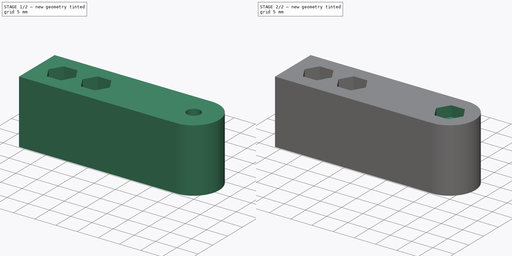
[diagram: build sequence overview — one tinted view per stage of 2, left to right]
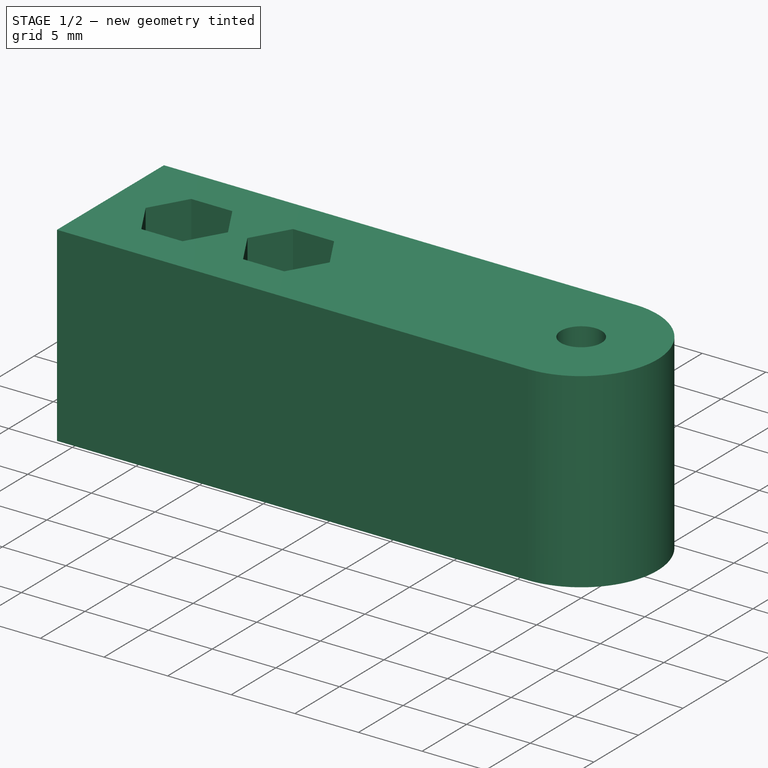
[diagram: stage 1 of 2 — iso view after this stage's code; geometry added in this stage tinted green]
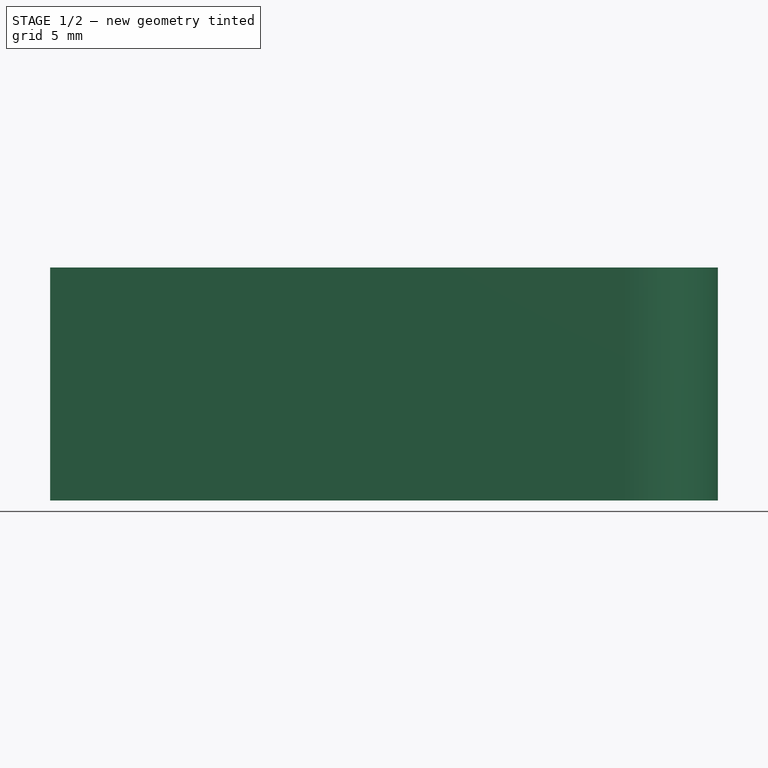
[diagram: stage 1 of 2 — front view after this stage's code; geometry added in this stage tinted green]
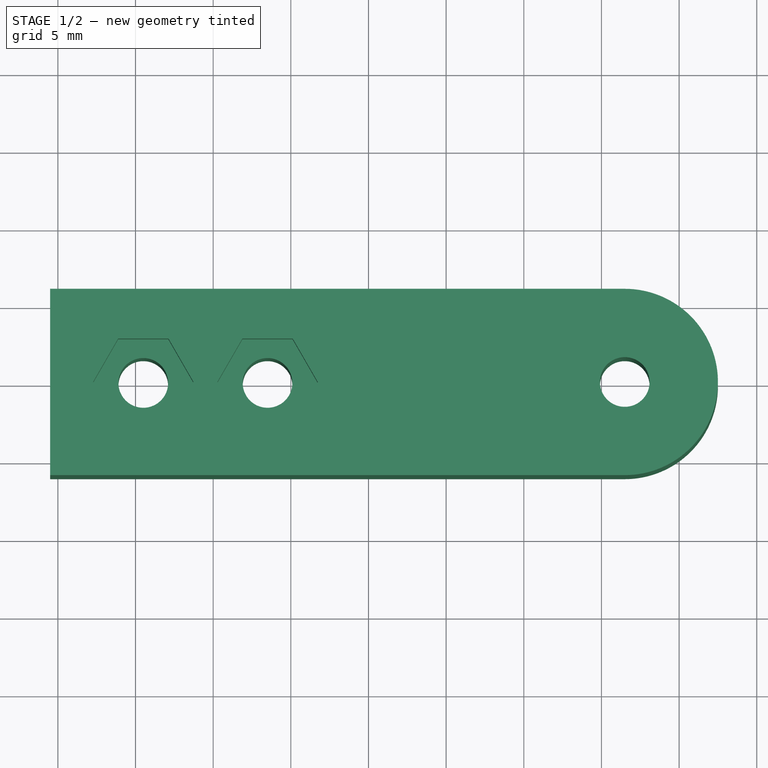
[diagram: stage 1 of 2 — top view after this stage's code; geometry added in this stage tinted green]
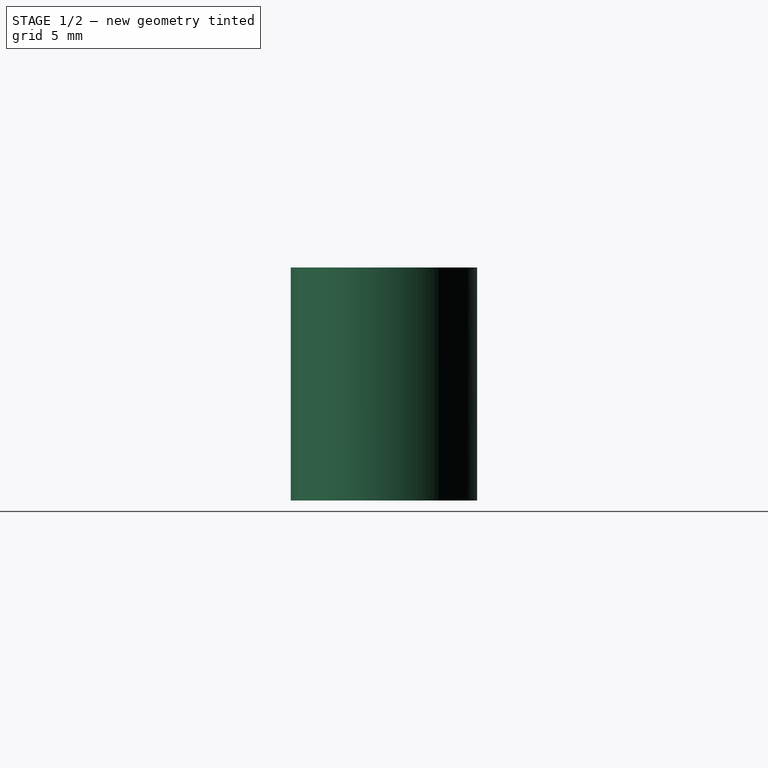
[diagram: stage 1 of 2 — right view after this stage's code; geometry added in this stage tinted green]
FCSTD DOCUMENT  (FreeCAD 0.20R29603 (Git))
Label: aaa
License: All rights reserved
LicenseURL: http://en.wikipedia.org/wiki/All_rights_reserved
objects: Sketcher::SketchObject×4, PartDesign::Pocket×3, PartDesign::Pad×1, PartDesign::Body×1
note: 13 computed .brp shape members not serialized (recipe doc carries the construction recipe); baked Part::Feature solids carry a one-line shape summary decoded from their .brp

FEATURE [Sketcher::SketchObject] Sketch
  FullyConstrained = true
  MapMode = 5
  Support = -> [XY_Plane]
  sketch-geometry (11):
    g0: LineSegment StartX=-15.5 StartY=6 StartZ=0 EndX=15.5 EndY=6 EndZ=0
    g1: LineSegment StartX=15.5 StartY=6 StartZ=0 EndX=15.5 EndY=-6 EndZ=0
    g2: LineSegment StartX=15.5 StartY=-6 StartZ=0 EndX=-15.5 EndY=-6 EndZ=0
    g3: LineSegment StartX=-15.5 StartY=-6 StartZ=0 EndX=-15.5 EndY=6 EndZ=0
    g4: Circle CenterX=-9.5 CenterY=0 CenterZ=0 NormalX=0 NormalY=0 NormalZ=1 AngleXU=0 Radius=1.6
    g5: Circle CenterX=-1.5 CenterY=0 CenterZ=0 NormalX=0 NormalY=0 NormalZ=1 AngleXU=0 Radius=1.6
    g6: Circle CenterX=21.5 CenterY=0 CenterZ=0 NormalX=0 NormalY=0 NormalZ=1 AngleXU=0 Radius=6
    g7: Circle CenterX=21.5 CenterY=0 CenterZ=0 NormalX=0 NormalY=0 NormalZ=1 AngleXU=0 Radius=1.6
    g8: LineSegment StartX=15.5 StartY=6 StartZ=0 EndX=21.5 EndY=6 EndZ=0
    g9: LineSegment StartX=15.5 StartY=-6 StartZ=0 EndX=21.5 EndY=-6 EndZ=0
    g10: ArcOfCircle CenterX=21.5 CenterY=0 CenterZ=0 NormalX=0 NormalY=0 NormalZ=1 AngleXU=0 Radius=6 StartAngle=4.71239 EndAngle=7.85398
  constraints (29):
    c: Coincident(g0,g1)
    c: Coincident(g1,g2)
    c: Coincident(g2,g3)
    c: Coincident(g3,g0)
    c: Horizontal(g2)
    c: Vertical(g1)
    c: DistanceY(g3,g3) = 12
    c: Symmetric(g0,g0,g-2)
    c: Symmetric(g0,g2,g-1)
    c: PointOnObject(g4,g-1)
    c: PointOnObject(g5,g-1)
    c: DistanceX(g4,g5) = 8
    c: PointOnObject(g6,g-1)
    c: Tangent(g6,g0)
    c: Tangent(g6,g1)
    c: Coincident(g7,g6)
    c: Coincident(g8,g0)
    c: Coincident(g9,g2)
    c: Coincident(g10,g7)
    c: Coincident(g9,g10)
    c: Coincident(g10,g8)
    c: Equal(g10,g6)
    c: Vertical(g9,g7)
    c: Vertical(g7,g8)
    c: DistanceX(g5,g2) = 17
    c: DistanceX(g2,g4) = 6
    c: Equal(g7,g5)
    c: Equal(g5,g4)
    c: Diameter(g7) = 3.2
FEATURE [PartDesign::Pad] Pad
  Direction = (0,0,1)
  Length = 15
  Length2 = 10
  Profile = -> Sketch
  ReferenceAxis = -> Sketch [N_Axis]
  Type = 0
FEATURE [Sketcher::SketchObject] Sketch001
  ExternalGeometry = -> [Pad]
  FullyConstrained = true
  MapMode = 5
  Placement = pos=(0,0,15) rot=(0,0,1;0rad)
  Support = -> [Pad]
  sketch-geometry (14):
    g0: LineSegment StartX=-7.88342 StartY=2.8 StartZ=0 EndX=-11.1166 EndY=2.8 EndZ=0
    g1: LineSegment StartX=-11.1166 StartY=2.8 StartZ=0 EndX=-12.7332 EndY=1.3447e-12 EndZ=0
    g2: LineSegment StartX=-12.7332 StartY=1.3447e-12 StartZ=0 EndX=-11.1166 EndY=-2.8 EndZ=0
    g3: LineSegment StartX=-11.1166 StartY=-2.8 StartZ=0 EndX=-7.88342 EndY=-2.8 EndZ=0
    g4: LineSegment StartX=-7.88342 StartY=-2.8 StartZ=0 EndX=-6.26684 EndY=1.3451e-12 EndZ=0
    g5: LineSegment StartX=-6.26684 StartY=1.3451e-12 StartZ=0 EndX=-7.88342 EndY=2.8 EndZ=0
    g6: Circle CenterX=-9.5 CenterY=0 CenterZ=0 NormalX=0 NormalY=0 NormalZ=1 AngleXU=0 Radius=3.23316
    g7: LineSegment StartX=0.116581 StartY=2.8 StartZ=0 EndX=-3.11658 EndY=2.8 EndZ=0
    g8: LineSegment StartX=-3.11658 StartY=2.8 StartZ=0 EndX=-4.73316 EndY=0 EndZ=0
    g9: LineSegment StartX=-4.73316 StartY=1e-16 StartZ=0 EndX=-3.11658 EndY=-2.8 EndZ=0
    g10: LineSegment StartX=-3.11658 StartY=-2.8 StartZ=0 EndX=0.116581 EndY=-2.8 EndZ=0
    g11: LineSegment StartX=0.116581 StartY=-2.8 StartZ=0 EndX=1.73316 EndY=-4e-16 EndZ=0
    g12: LineSegment StartX=1.73316 StartY=-4e-16 StartZ=0 EndX=0.116581 EndY=2.8 EndZ=0
    g13: Circle CenterX=-1.5 CenterY=0 CenterZ=0 NormalX=0 NormalY=0 NormalZ=1 AngleXU=0 Radius=3.23316
  constraints (32):
    c: Coincident(g0,g1)
    c: Coincident(g1,g2)
    c: Coincident(g2,g3)
    c: Coincident(g3,g4)
    c: Coincident(g4,g5)
    c: Coincident(g5,g0)
    c: Equal(g0, g1-g5) x5
    c: PointOnObject(g0,g6)
    c: PointOnObject(g1,g6)
    c: PointOnObject(g2,g6)
    c: PointOnObject(g3,g6)
    c: PointOnObject(g4,g6)
    c: PointOnObject(g5,g6)
    c: Coincident(g7,g8)
    c: Coincident(g8,g9)
    c: Coincident(g9,g10)
    c: Coincident(g10,g11)
    c: Coincident(g11,g12)
    c: Coincident(g12,g7)
    c: Equal(g7, g8-g12) x5
    c: PointOnObject(g7,g13)
    c: PointOnObject(g8,g13)
    c: PointOnObject(g9,g13)
    c: PointOnObject(g10,g13)
    c: PointOnObject(g11,g13)
    c: PointOnObject(g12,g13)
    c: Coincident(g13,g-3)
    c: Coincident(g6,g-4)
    c: Horizontal(g0)
    c: Horizontal(g7)
    c: Equal(g13,g6)
    c: DistanceY(g2,g0) = 5.6
FEATURE [PartDesign::Pocket] Pocket
  BaseFeature = -> Pad
  Direction = (0,0,-1)
  Length = 3.5
  Length2 = 5
  Profile = -> Sketch001
  ReferenceAxis = -> Sketch001 [N_Axis]
  Type = 0
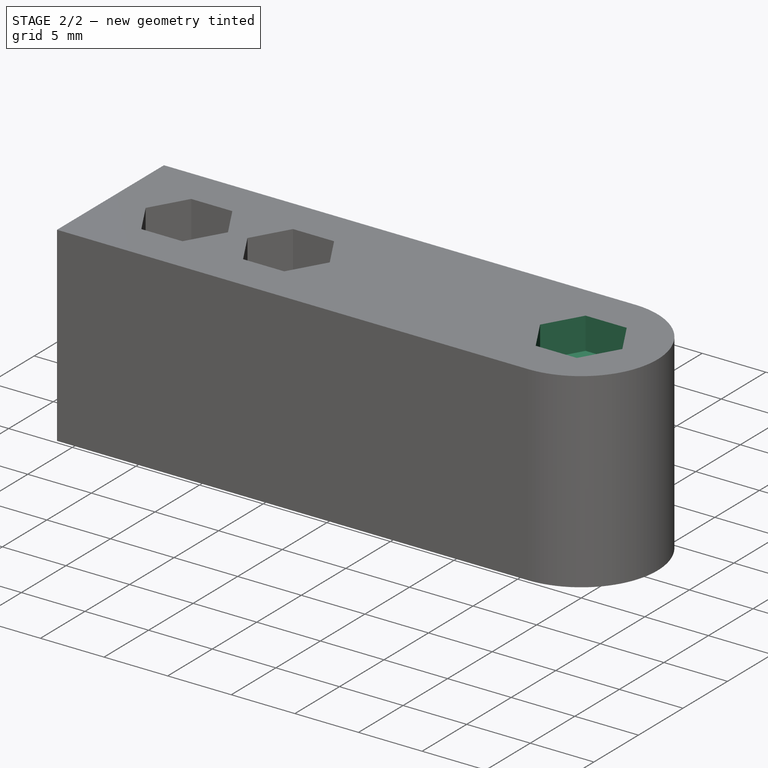
[diagram: stage 2 of 2 — iso view after this stage's code; geometry added in this stage tinted green]
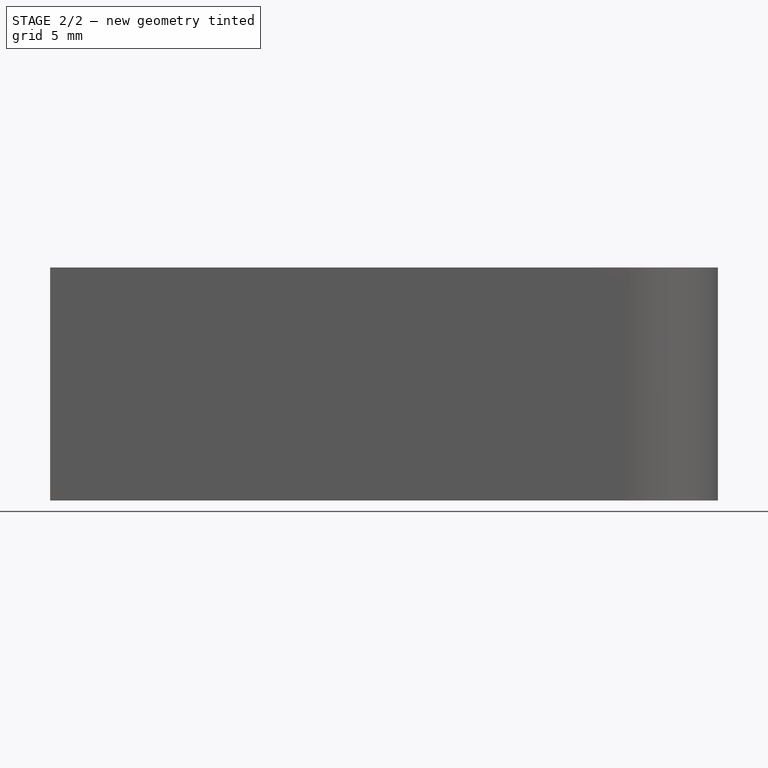
[diagram: stage 2 of 2 — front view after this stage's code; geometry added in this stage tinted green]
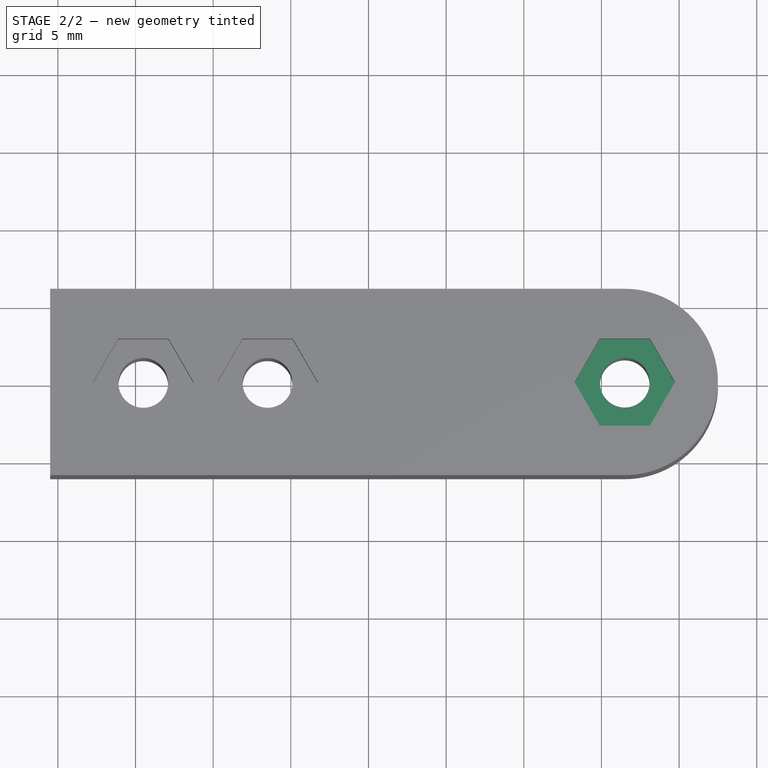
[diagram: stage 2 of 2 — top view after this stage's code; geometry added in this stage tinted green]
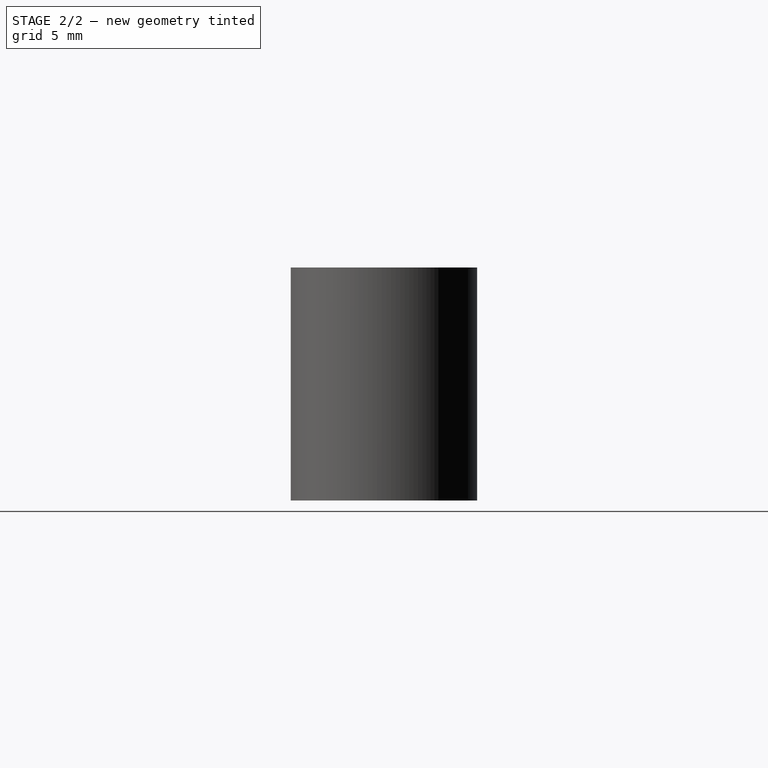
[diagram: stage 2 of 2 — right view after this stage's code; geometry added in this stage tinted green]
FEATURE [Sketcher::SketchObject] Sketch002
  ExternalGeometry = -> [Pocket]
  FullyConstrained = true
  MapMode = 5
  Placement = pos=(0,0,15) rot=(0,0,1;0rad)
  Support = -> [Pocket]
  sketch-geometry (7):
    g0: LineSegment StartX=23.1166 StartY=2.8 StartZ=0 EndX=19.8834 EndY=2.8 EndZ=0
    g1: LineSegment StartX=19.8834 StartY=2.8 StartZ=0 EndX=18.2668 EndY=4e-16 EndZ=0
    g2: LineSegment StartX=18.2668 StartY=4e-16 StartZ=0 EndX=19.8834 EndY=-2.8 EndZ=0
    g3: LineSegment StartX=19.8834 StartY=-2.8 StartZ=0 EndX=23.1166 EndY=-2.8 EndZ=0
    g4: LineSegment StartX=23.1166 StartY=-2.8 StartZ=0 EndX=24.7332 EndY=0 EndZ=0
    g5: LineSegment StartX=24.7332 StartY=1e-16 StartZ=0 EndX=23.1166 EndY=2.8 EndZ=0
    g6: Circle CenterX=21.5 CenterY=0 CenterZ=0 NormalX=0 NormalY=0 NormalZ=1 AngleXU=0 Radius=3.23316
  constraints (16):
    c: Coincident(g0,g1)
    c: Coincident(g1,g2)
    c: Coincident(g2,g3)
    c: Coincident(g3,g4)
    c: Coincident(g4,g5)
    c: Coincident(g5,g0)
    c: Equal(g0, g1-g5) x5
    c: PointOnObject(g0,g6)
    c: PointOnObject(g1,g6)
    c: PointOnObject(g2,g6)
    c: PointOnObject(g3,g6)
    c: PointOnObject(g4,g6)
    c: PointOnObject(g5,g6)
    c: Coincident(g6,g-3)
    c: Horizontal(g0)
    c: Equal(g0,g-4)
FEATURE [PartDesign::Pocket] Pocket001
  BaseFeature = -> Pocket
  Direction = (0,0,-1)
  Length = 2.5
  Length2 = 5
  Profile = -> Sketch002
  ReferenceAxis = -> Sketch002 [N_Axis]
  Type = 0
FEATURE [Sketcher::SketchObject] Sketch003
  ExternalGeometry = -> [Pocket001]
  FullyConstrained = true
  MapMode = 5
  Placement = pos=(0,0,0) rot=(1,0,0;3.14159rad)
  Support = -> [Pocket001]
  sketch-geometry (7):
    g0: LineSegment StartX=24.7332 StartY=1.129e-13 StartZ=0 EndX=23.1166 EndY=2.8 EndZ=0
    g1: LineSegment StartX=23.1166 StartY=2.8 StartZ=0 EndX=19.8834 EndY=2.8 EndZ=0
    g2: LineSegment StartX=19.8834 StartY=2.8 StartZ=0 EndX=18.2668 EndY=-7.15e-13 EndZ=0
    g3: LineSegment StartX=18.2668 StartY=-7.15e-13 StartZ=0 EndX=19.8834 EndY=-2.8 EndZ=0
    g4: LineSegment StartX=19.8834 StartY=-2.8 StartZ=0 EndX=23.1166 EndY=-2.8 EndZ=0
    g5: LineSegment StartX=23.1166 StartY=-2.8 StartZ=0 EndX=24.7332 EndY=1.128e-13 EndZ=0
    g6: Circle CenterX=21.5 CenterY=0 CenterZ=0 NormalX=0 NormalY=0 NormalZ=1 AngleXU=0 Radius=3.23316
  constraints (15):
    c: Coincident(g0,g1)
    c: Coincident(g1,g2)
    c: Coincident(g2,g3)
    c: Coincident(g3,g4)
    c: Coincident(g4,g5)
    c: Coincident(g5,g0)
    c: Equal(g0, g1-g5) x5
    c: PointOnObject(g0,g6)
    c: PointOnObject(g1,g6)
    c: PointOnObject(g2,g6)
    c: PointOnObject(g3,g6)
    c: PointOnObject(g4,g6)
    c: PointOnObject(g5,g6)
    c: Coincident(g6,g-3)
    c: Coincident(g-4,g0)
FEATURE [PartDesign::Pocket] Pocket002
  BaseFeature = -> Pocket001
  Direction = (0,0,1)
  Length = 2.5
  Length2 = 5
  Profile = -> Sketch003
  ReferenceAxis = -> Sketch003 [N_Axis]
  Type = 0
FEATURE [PartDesign::Body] Body
  Group = -> [Sketch,Pad,Sketch001,Pocket,Sketch002,Pocket001,Sketch003,Pocket002]
  Origin = -> Origin
  Tip = -> Pocket002
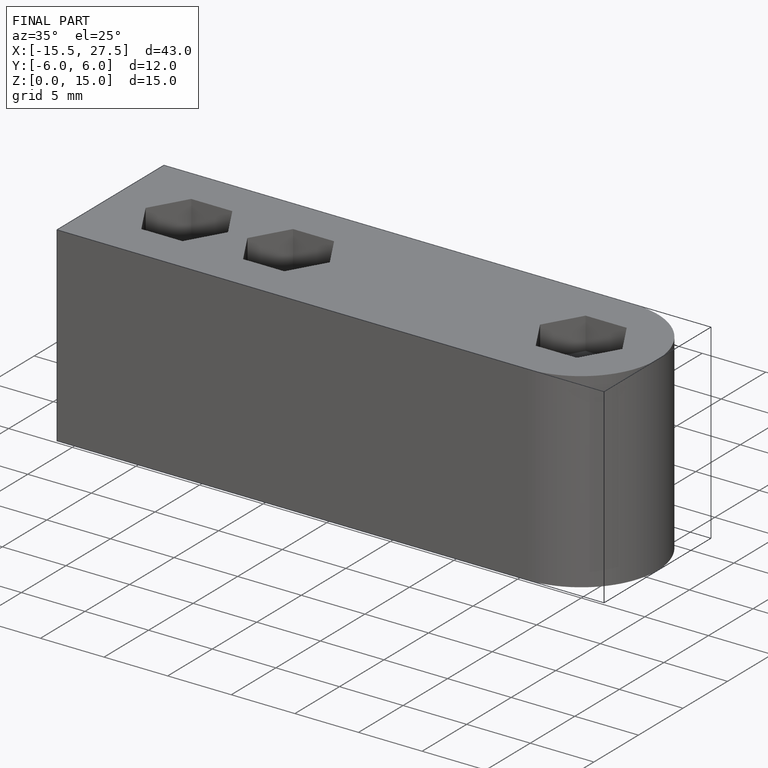
[diagram: finished part — iso view with bounding-box wireframe]
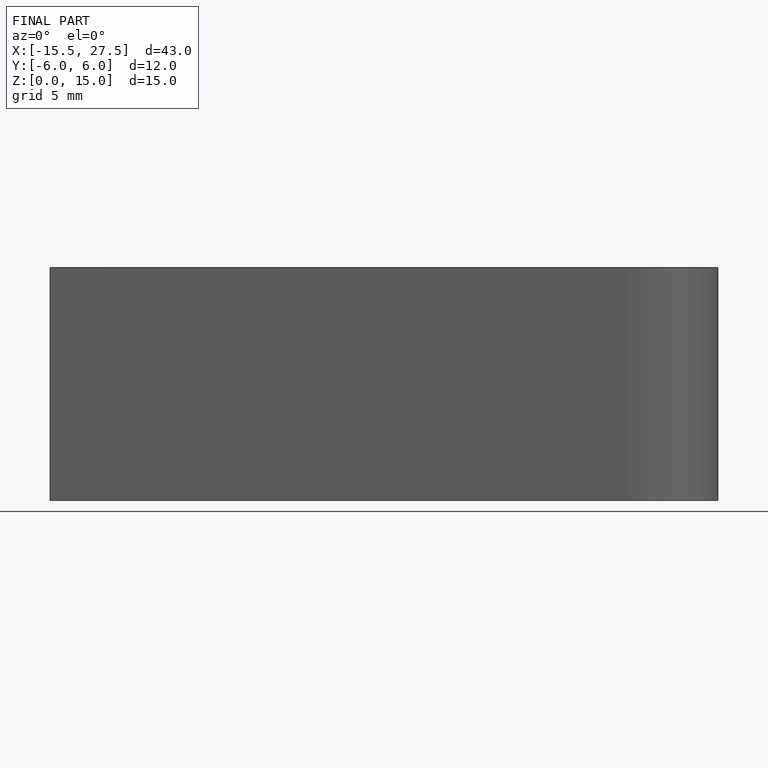
[diagram: finished part — front view with bounding-box wireframe]
